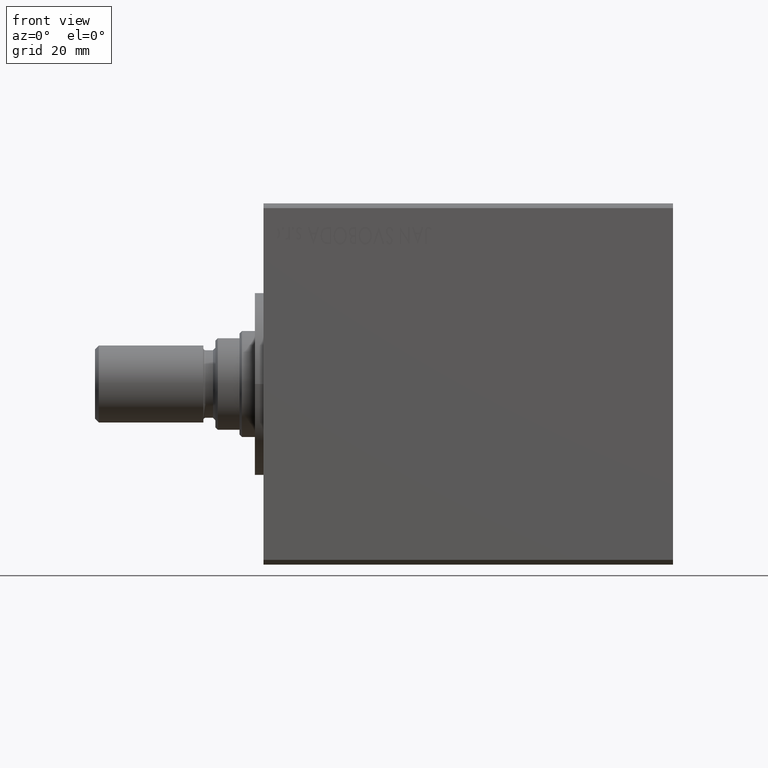
[diagram: clean part render]
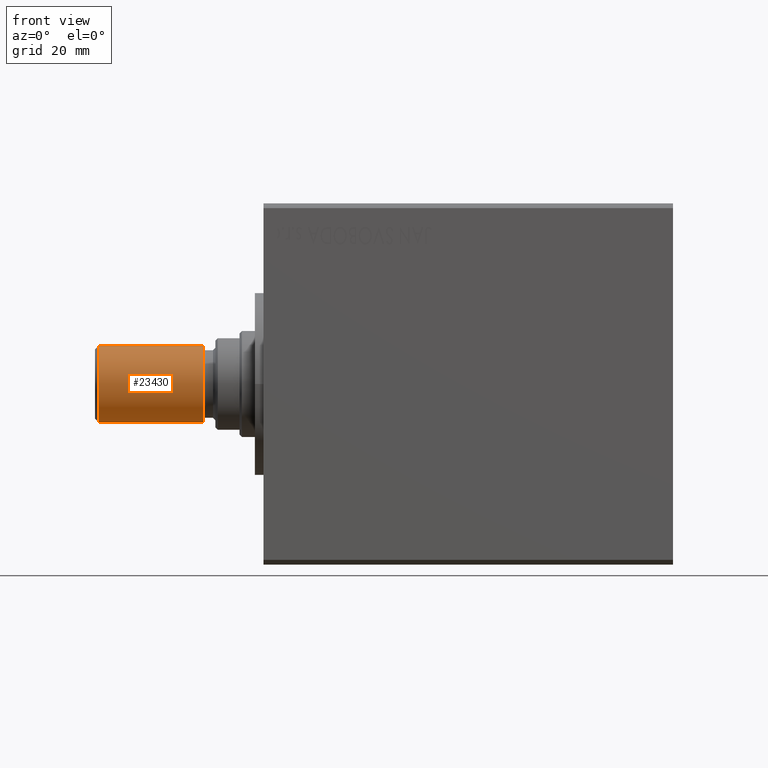
[diagram: same view with one face highlighted and labeled with its STEP entity id]
A machine part, front view. The second image highlights one B-rep face of the part: STEP entity #23430.
In plain terms, the highlighted cylindrical surface (partial cylindrical patch) has radius 8 mm, axis along (-1, 0, 0).
Its self-contained STEP definition (entity closure, byte-faithful):
#2501 = ORIENTED_EDGE ( 'NONE', *, *, #21756, .F. ) ;
#4909 = VERTEX_POINT ( 'NONE', #41517 ) ;
#5139 = DIRECTION ( 'NONE',  ( -1.000000000000000000, 0.000000000000000000, 0.000000000000000000 ) ) ;
#5923 = VERTEX_POINT ( 'NONE', #19215 ) ;
#7810 = CIRCLE ( 'NONE', #19252, 8.000000000000000000 ) ;
#9039 = CARTESIAN_POINT ( 'NONE',  ( 0.000000000000000000, 0.000000000000000000, 0.8000000000000160316 ) ) ;
#10017 = VECTOR ( 'NONE', #18121, 1000.000000000000000 ) ;
#15670 = CYLINDRICAL_SURFACE ( 'NONE', #26404, 8.000000000000000000 ) ;
#16515 = AXIS2_PLACEMENT_3D ( 'NONE', #9039, #28826, #42535 ) ;
#18121 = DIRECTION ( 'NONE',  ( -0.000000000000000000, -0.000000000000000000, -1.000000000000000000 ) ) ;
#18346 = ORIENTED_EDGE ( 'NONE', *, *, #43212, .T. ) ;
#19215 = CARTESIAN_POINT ( 'NONE',  ( -8.000000000000000000, 0.000000000000000000, 0.8000000000000160316 ) ) ;
#19252 = AXIS2_PLACEMENT_3D ( 'NONE', #41167, #23867, #31490 ) ;
#19700 = EDGE_LOOP ( 'NONE', ( #2501, #23323, #30880, #18346 ) ) ;
#20694 = CARTESIAN_POINT ( 'NONE',  ( 8.000000000000000000, 9.797174393178823685E-16, 0.8000000000000160316 ) ) ;
#21756 = EDGE_CURVE ( 'NONE', #31939, #25795, #30451, .T. ) ;
#22111 = CARTESIAN_POINT ( 'NONE',  ( 8.000000000000000000, 9.797174393178823685E-16, 22.50000000000000000 ) ) ;
#23323 = ORIENTED_EDGE ( 'NONE', *, *, #39269, .F. ) ;
#23430 = ADVANCED_FACE ( 'NONE', ( #42869 ), #15670, .T. ) ;
#23867 = DIRECTION ( 'NONE',  ( 0.000000000000000000, 0.000000000000000000, 1.000000000000000000 ) ) ;
#24819 = DIRECTION ( 'NONE',  ( -0.000000000000000000, -0.000000000000000000, -1.000000000000000000 ) ) ;
#25795 = VERTEX_POINT ( 'NONE', #20694 ) ;
#25797 = DIRECTION ( 'NONE',  ( -0.000000000000000000, -0.000000000000000000, -1.000000000000000000 ) ) ;
#26404 = AXIS2_PLACEMENT_3D ( 'NONE', #28949, #25797, #5139 ) ;
#28826 = DIRECTION ( 'NONE',  ( -0.000000000000000000, -0.000000000000000000, 1.000000000000000000 ) ) ;
#28949 = CARTESIAN_POINT ( 'NONE',  ( 0.000000000000000000, 0.000000000000000000, 22.50000000000000000 ) ) ;
#30451 = LINE ( 'NONE', #22111, #33555 ) ;
#30880 = ORIENTED_EDGE ( 'NONE', *, *, #40937, .T. ) ;
#31490 = DIRECTION ( 'NONE',  ( 1.000000000000000000, 0.000000000000000000, 0.000000000000000000 ) ) ;
#31939 = VERTEX_POINT ( 'NONE', #42743 ) ;
#33555 = VECTOR ( 'NONE', #24819, 1000.000000000000000 ) ;
#35642 = LINE ( 'NONE', #38806, #10017 ) ;
#38806 = CARTESIAN_POINT ( 'NONE',  ( -8.000000000000000000, 0.000000000000000000, 22.50000000000000000 ) ) ;
#39269 = EDGE_CURVE ( 'NONE', #4909, #31939, #7810, .T. ) ;
#40937 = EDGE_CURVE ( 'NONE', #4909, #5923, #35642, .T. ) ;
#41167 = CARTESIAN_POINT ( 'NONE',  ( 0.000000000000000000, 0.000000000000000000, 22.50000000000000000 ) ) ;
#41517 = CARTESIAN_POINT ( 'NONE',  ( -8.000000000000000000, 0.000000000000000000, 22.50000000000000000 ) ) ;
#42535 = DIRECTION ( 'NONE',  ( 1.000000000000000000, 0.000000000000000000, 0.000000000000000000 ) ) ;
#42743 = CARTESIAN_POINT ( 'NONE',  ( 8.000000000000000000, 9.797174393178823685E-16, 22.50000000000000000 ) ) ;
#42869 = FACE_OUTER_BOUND ( 'NONE', #19700, .T. ) ;
#43073 = CIRCLE ( 'NONE', #16515, 8.000000000000000000 ) ;
#43212 = EDGE_CURVE ( 'NONE', #5923, #25795, #43073, .T. ) ;